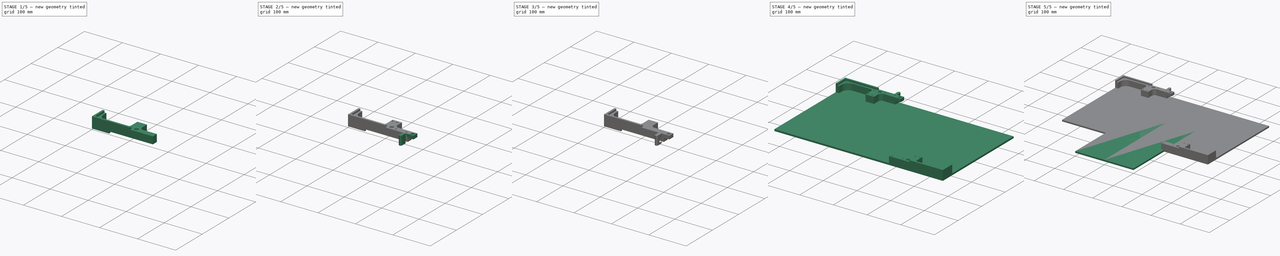
[diagram: build sequence overview — one tinted view per stage of 5, left to right]
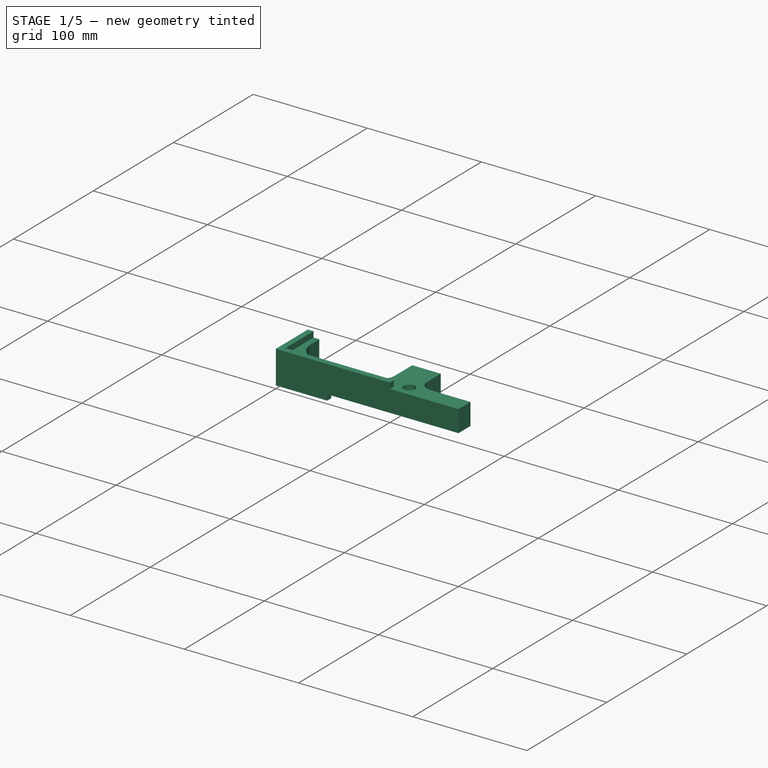
[diagram: stage 1 of 5 — iso view after this stage's code; geometry added in this stage tinted green]
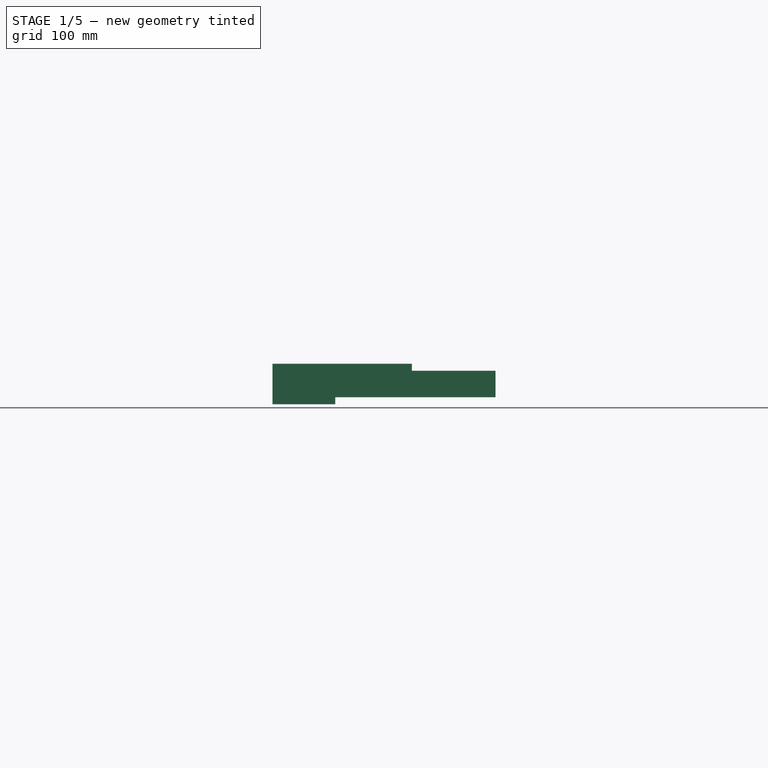
[diagram: stage 1 of 5 — front view after this stage's code; geometry added in this stage tinted green]
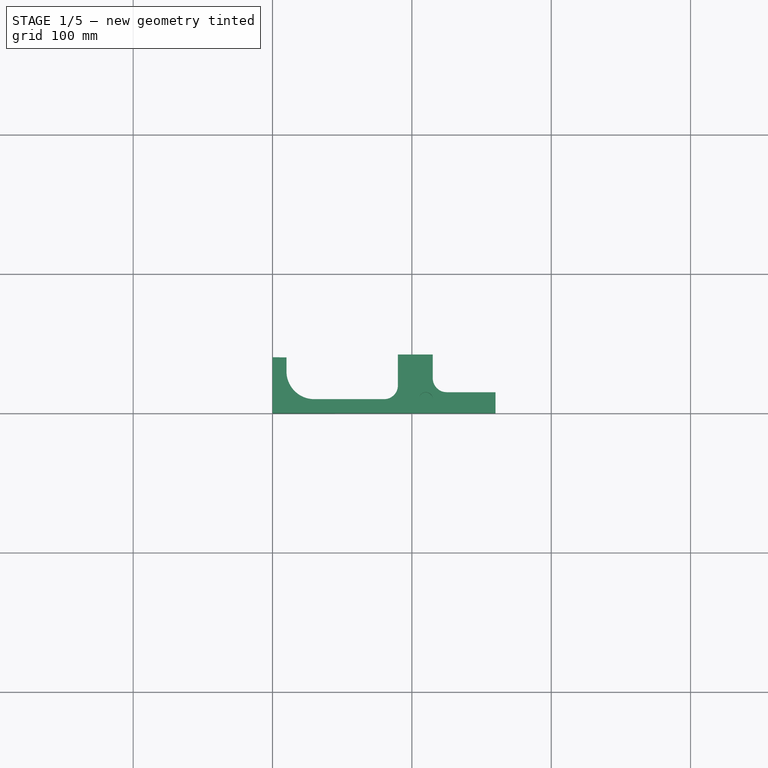
[diagram: stage 1 of 5 — top view after this stage's code; geometry added in this stage tinted green]
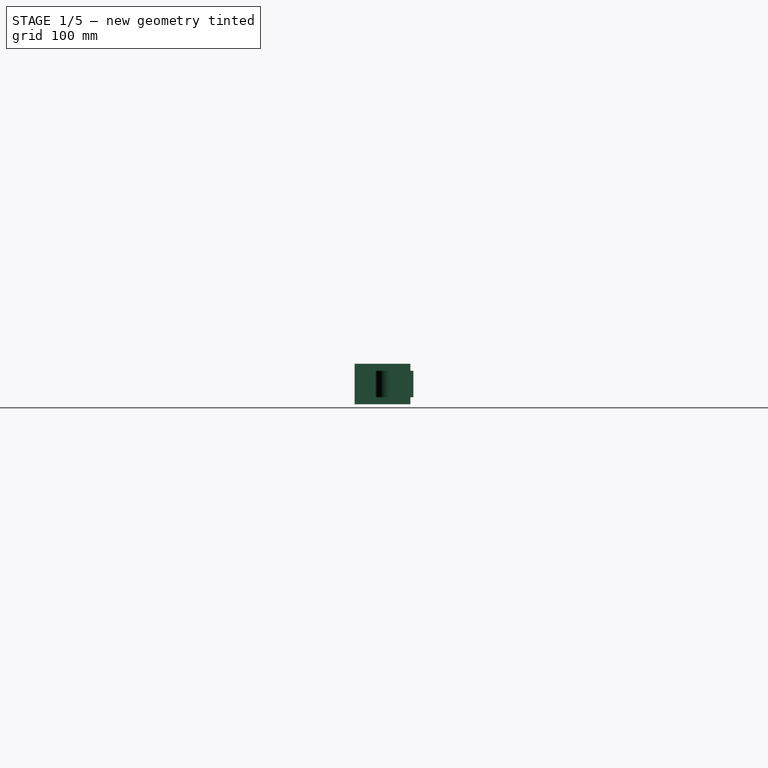
[diagram: stage 1 of 5 — right view after this stage's code; geometry added in this stage tinted green]
FCSTD DOCUMENT  (FreeCAD 1.0R39319 (Git))
Label: ChessBoard
License: All rights reserved
LicenseURL: https://en.wikipedia.org/wiki/All_rights_reserved
objects: Sketcher::SketchObject×19, PartDesign::Pocket×10, PartDesign::Pad×8, PartDesign::Body×6, App::LinkGroup×3, App::Link×3, PartDesign::Hole×2, Part::Mirroring×2, Image::ImagePlane×1
note: 106 computed .brp shape members not serialized (recipe doc carries the construction recipe); baked Part::Feature solids carry a one-line shape summary decoded from their .brp
EXTERNAL_REF file=NavigationBoard.FCStd obj=LinkGroup
EXTERNAL_REF file=SnapLock.FCStd obj=LinkGroup
EXTERNAL_REF file=SnapLock.FCStd obj=LinkGroup001

FEATURE [Sketcher::SketchObject] Sketch009
  ArcFitTolerance = 1e-06
  AttachmentSupport = -> [XY_Plane005]
  FullyConstrained = false
  MakeInternals = false
  MapMode = 5
  sketch-geometry (13):
    g0: LineSegment StartX=0 StartY=40 StartZ=0 EndX=0 EndY=0 EndZ=0
    g1: LineSegment StartX=0 StartY=0 StartZ=0 EndX=160 EndY=0 EndZ=0
    g2: LineSegment StartX=0 StartY=40 StartZ=0 EndX=10 EndY=40 EndZ=0
    g3: LineSegment StartX=10 StartY=40 StartZ=0 EndX=10 EndY=30 EndZ=0
    g4: ArcOfCircle CenterX=30 CenterY=30 CenterZ=0 NormalX=0 NormalY=0 NormalZ=1 AngleXU=0 Radius=20 StartAngle=3.14159 EndAngle=4.71239
    g5: LineSegment StartX=90 StartY=42.0946 StartZ=0 EndX=115 EndY=42.0946 EndZ=0
    g6: LineSegment StartX=115 StartY=42.0946 StartZ=0 EndX=115 EndY=25 EndZ=0
    g7: LineSegment StartX=90 StartY=42.0946 StartZ=0 EndX=90 EndY=20 EndZ=0
    g8: LineSegment StartX=30 StartY=10 StartZ=0 EndX=80 EndY=10 EndZ=0
    g9: ArcOfCircle CenterX=125 CenterY=25 CenterZ=0 NormalX=0 NormalY=0 NormalZ=1 AngleXU=0 Radius=10 StartAngle=3.14159 EndAngle=4.71239
    g10: ArcOfCircle CenterX=80 CenterY=20 CenterZ=0 NormalX=0 NormalY=0 NormalZ=1 AngleXU=0 Radius=10 StartAngle=4.71239 EndAngle=6.28319
    g11: LineSegment StartX=125 StartY=15 StartZ=0 EndX=160 EndY=15 EndZ=0
    g12: LineSegment StartX=160 StartY=15 StartZ=0 EndX=160 EndY=0 EndZ=0
  constraints (38):
    c: PointOnObject(g0,g-2)
    c: Coincident(g0,g-1)
    c: Coincident(g0,g1)
    c: Coincident(g0,g2)
    c: Horizontal(g2)
    c: Coincident(g2,g3)
    c: Vertical(g3)
    c: Coincident(g4,g3)
    c: Vertical(g4,g4)
    c: Horizontal(g4,g3)
    c: Radius(g4) = 20
    c: DistanceY(g1,g9) = 15
    c: Distance(g2,g2) = 10
    c: DistanceY(g0,g0) = 40
    c: Horizontal(g5)
    c: Coincident(g5,g6)
    c: Vertical(g6)
    c: Coincident(g5,g7)
    c: Vertical(g7)
    c: Tangent(g4,g8) = -1.5708
    c: Coincident(g9,g6)
    c: Coincident(g10,g7)
    c: Coincident(g10,g8)
    c: Distance(g1,g8) = 10
    c: Radius(g10) = 10
    c: Vertical(g10,g8)
    c: Horizontal(g10,g7)
    c: Radius(g9) = 10
    c: Vertical(g9,g9)
    c: Horizontal(g9,g6)
    c: DistanceX(g-1,g10) = 80
    c: Tangent(g9,g11) = -1.5708
    c: Coincident(g11,g12)
    c: Vertical(g12)
    c: Coincident(g1,g12)
    c: Horizontal(g1)
    c: Distance(g-2,g12) = 160
    c: DistanceX(g5,g5) = 25
FEATURE [PartDesign::Pad] Pad005
  Direction = (0,0,1)
  Length = 29
  Length2 = 10
  Profile = -> Sketch009
  ReferenceAxis = -> Sketch009 [N_Axis]
  Refine = true
  Suppressed = false
  Type = 0
FEATURE [Sketcher::SketchObject] Sketch010
  ArcFitTolerance = 1e-06
  AttachmentSupport = -> [Pad005]
  FullyConstrained = false
  MakeInternals = false
  MapMode = 5
  Placement = pos=(0,0,29) rot=(0,0,1;0rad)
  sketch-geometry (6):
    g0: LineSegment StartX=5 StartY=45 StartZ=0 EndX=5 EndY=5 EndZ=0
    g1: LineSegment StartX=5 StartY=5 StartZ=0 EndX=100 EndY=5 EndZ=0
    g2: LineSegment StartX=275.375 StartY=45 StartZ=0 EndX=5 EndY=45 EndZ=0
    g3: LineSegment StartX=100 StartY=5 StartZ=0 EndX=100 EndY=-8.02974 EndZ=0
    g4: LineSegment StartX=100 StartY=-8.02974 StartZ=0 EndX=275.375 EndY=-8.02974 EndZ=0
    g5: LineSegment StartX=275.375 StartY=45 StartZ=0 EndX=275.375 EndY=-8.02974 EndZ=0
  constraints (16):
    c: Coincident(g0,g1)
    c: Coincident(g2,g0)
    c: Vertical(g0)
    c: Horizontal(g1)
    c: Horizontal(g2)
    c: Distance(g-2,g0) = 5
    c: Distance(g-1,g1) = 5
    c: DistanceY(g0,g0) = 40
    c: Vertical(g3)
    c: Coincident(g3,g4)
    c: Horizontal(g4)
    c: Coincident(g1,g3)
    c: Coincident(g5,g2)
    c: Coincident(g5,g4)
    c: Vertical(g5)
    c: Distance(g-2,g3) = 100
FEATURE [PartDesign::Pocket] Pocket004
  BaseFeature = -> Pad005
  Direction = (0,0,-1)
  Length = 5
  Length2 = 5
  Profile = -> Sketch010
  ReferenceAxis = -> Sketch010 [N_Axis]
  Refine = true
  Suppressed = false
  Type = 0
FEATURE [Sketcher::SketchObject] Sketch008
  ArcFitTolerance = 1e-06
  AttachmentSupport = -> [Pad002]
  ExternalGeometry = -> [Pad002]
  FullyConstrained = false
  MakeInternals = false
  MapMode = 5
  Placement = pos=(-4.7e-15,-21,2.3e-15) rot=(0.57735,0.57735,-0.57735;2.0944rad)
  sketch-geometry (4):
    g0: LineSegment StartX=-13.8912 StartY=3.5 StartZ=0 EndX=-13.8912 EndY=-3.5 EndZ=0
    g1: LineSegment StartX=-13.8912 StartY=-3.5 StartZ=0 EndX=4 EndY=-3.5 EndZ=0
    g2: LineSegment StartX=4 StartY=-3.5 StartZ=0 EndX=4 EndY=3.5 EndZ=0
    g3: LineSegment StartX=4 StartY=3.5 StartZ=0 EndX=-13.8912 EndY=3.5 EndZ=0
  constraints (11):
    c: Coincident(g0,g1)
    c: Coincident(g1,g2)
    c: Coincident(g2,g3)
    c: Coincident(g3,g0)
    c: Vertical(g0)
    c: Vertical(g2)
    c: Horizontal(g1)
    c: Horizontal(g3)
    c: Vertical(g2,g-4)
    c: Distance(g3,g-4) = 4
    c: Distance(g-3,g1) = 4
FEATURE [PartDesign::Pocket] Pocket005
  BaseFeature = -> Pad002
  Direction = (0,1,0)
  Length = 5
  Length2 = 5
  Placement = pos=(0,0,0) rot=(1,1,1;2.0944rad)
  Profile = -> Sketch008
  ReferenceAxis = -> Sketch008 [N_Axis]
  Refine = true
  Suppressed = false
  Type = 1
FEATURE [Sketcher::SketchObject] Sketch009
  ArcFitTolerance = 1e-06
  AttachmentSupport = -> [Pocket005]
  FullyConstrained = true
  MakeInternals = false
  MapMode = 5
  Placement = pos=(4e-16,-2.5e-15,-4) rot=(0,0,-1;1.5708rad)
  sketch-geometry (2):
    g0: Circle CenterX=16 CenterY=0 CenterZ=0 NormalX=0 NormalY=0 NormalZ=1 AngleXU=0 Radius=1.5
    g1: Circle CenterX=-10 CenterY=0 CenterZ=0 NormalX=0 NormalY=0 NormalZ=1 AngleXU=0 Radius=1.5
  constraints (6):
    c: Diameter(g0) = 3
    c: PointOnObject(g0,g-1)
    c: Diameter(g1) = 3
    c: PointOnObject(g1,g-1)
    c: DistanceX(g1,g-1) = 10
    c: DistanceX(g-1,g0) = 16
FEATURE [PartDesign::Pocket] Pocket006
  BaseFeature = -> Pocket005
  Direction = (0,0,-1)
  Length = 5
  Length2 = 5
  Placement = pos=(0,0,0) rot=(1,1,1;2.0944rad)
  Profile = -> Sketch009
  ReferenceAxis = -> Sketch009 [N_Axis]
  Refine = true
  Suppressed = false
  Type = 1
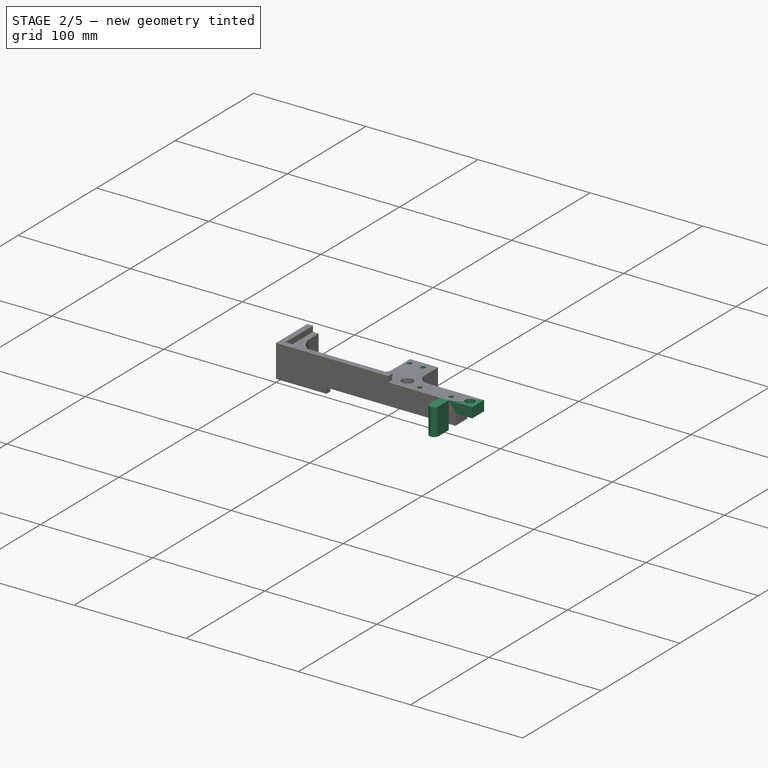
[diagram: stage 2 of 5 — iso view after this stage's code; geometry added in this stage tinted green]
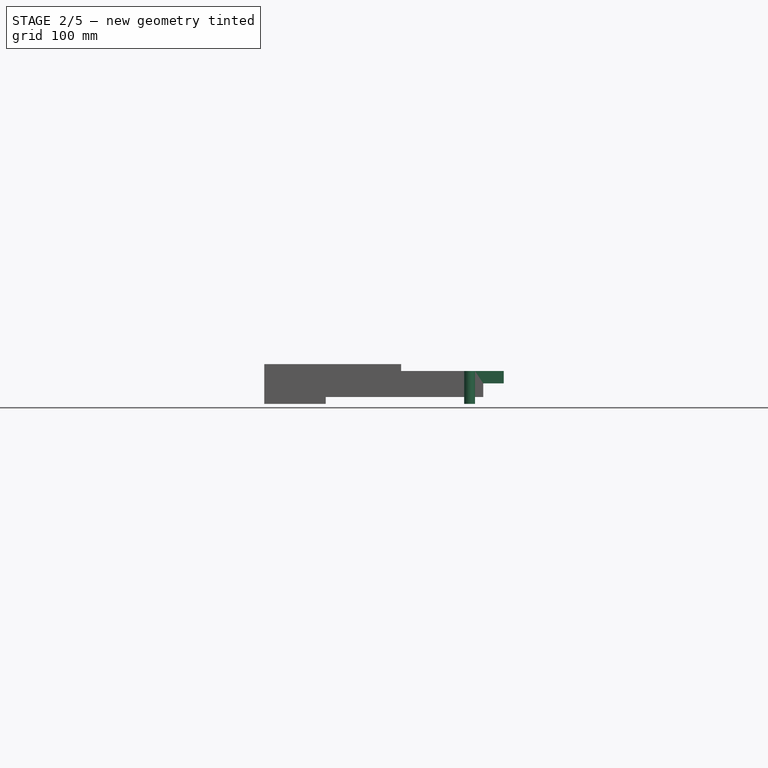
[diagram: stage 2 of 5 — front view after this stage's code; geometry added in this stage tinted green]
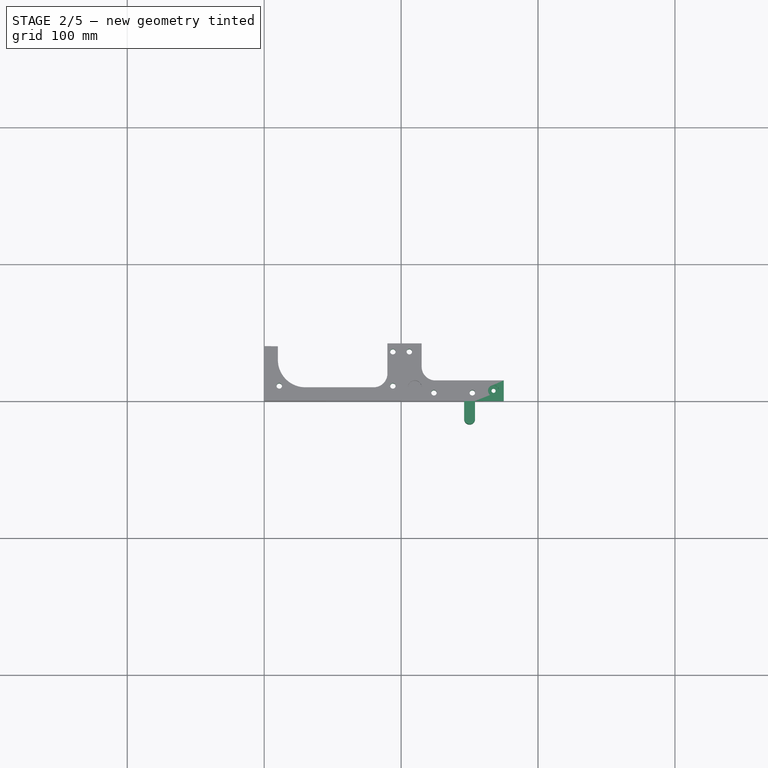
[diagram: stage 2 of 5 — top view after this stage's code; geometry added in this stage tinted green]
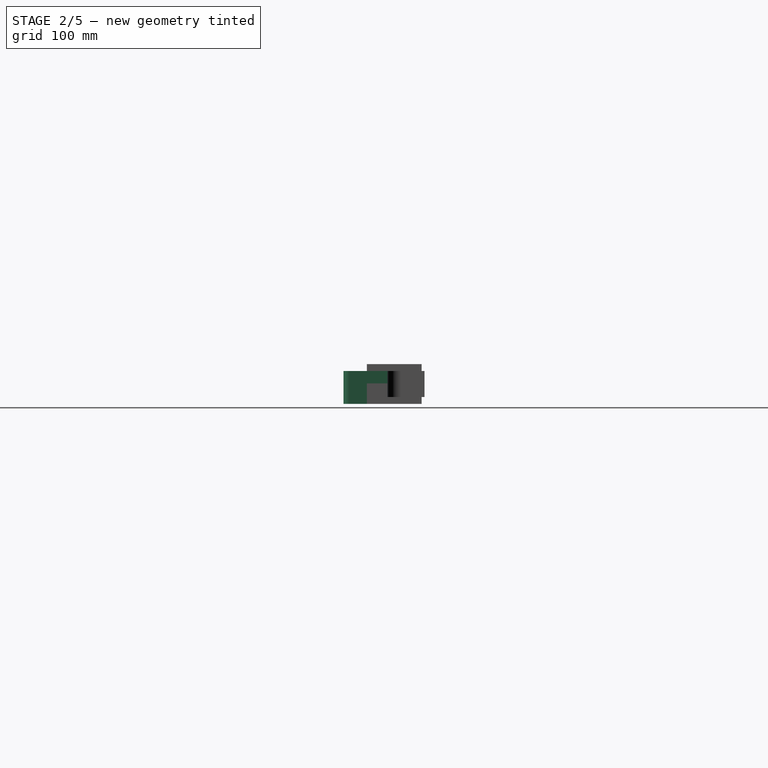
[diagram: stage 2 of 5 — right view after this stage's code; geometry added in this stage tinted green]
FEATURE [Sketcher::SketchObject] Sketch011
  ArcFitTolerance = 1e-06
  AttachmentSupport = -> [Pocket004]
  FullyConstrained = false
  MakeInternals = false
  MapMode = 5
  Placement = pos=(0,0,0) rot=(1,0,0;3.14159rad)
  sketch-geometry (6):
    g0: LineSegment StartX=5 StartY=-5 StartZ=0 EndX=5 EndY=-45 EndZ=0
    g1: LineSegment StartX=5 StartY=-45 StartZ=0 EndX=160 EndY=-45 EndZ=0
    g2: LineSegment StartX=45 StartY=-5 StartZ=0 EndX=5 EndY=-5 EndZ=0
    g3: LineSegment StartX=45 StartY=-5 StartZ=0 EndX=45 EndY=8.54607 EndZ=0
    g4: LineSegment StartX=45 StartY=8.54607 StartZ=0 EndX=160 EndY=8.54607 EndZ=0
    g5: LineSegment StartX=160 StartY=8.54607 StartZ=0 EndX=160 EndY=-45 EndZ=0
  constraints (17):
    c: Coincident(g0,g1)
    c: Coincident(g2,g0)
    c: Vertical(g0)
    c: Horizontal(g1)
    c: Horizontal(g2)
    c: Distance(g-1,g2) = 5
    c: Distance(g-2,g0) = 5
    c: DistanceY(g0,g0) = 40
    c: Coincident(g2,g3)
    c: Vertical(g3)
    c: Coincident(g3,g4)
    c: Horizontal(g4)
    c: Coincident(g4,g5)
    c: Coincident(g5,g1)
    c: Vertical(g5)
    c: DistanceX(g0,g2) = 40
    c: Distance(g1,g-2) = 160
FEATURE [PartDesign::Pocket] Pocket005
  BaseFeature = -> Pocket004
  Direction = (0,0,1)
  Length = 5
  Length2 = 5
  Profile = -> Sketch011
  ReferenceAxis = -> Sketch011 [N_Axis]
  Refine = true
  Suppressed = false
  Type = 0
FEATURE [Sketcher::SketchObject] Sketch012
  ArcFitTolerance = 1e-06
  AttachmentSupport = -> [Pocket005]
  ExternalGeometry = -> [Pocket005]
  FullyConstrained = true
  MakeInternals = false
  MapMode = 5
  Placement = pos=(0,0,24) rot=(0,0,1;0rad)
  sketch-geometry (1):
    g0: Circle CenterX=110 CenterY=10 CenterZ=0 NormalX=0 NormalY=0 NormalZ=1 AngleXU=0 Radius=5
  constraints (3):
    c: Diameter(g0) = 10
    c: Distance(g0,g-1) = 10
    c: DistanceX(g-3,g0) = 10
FEATURE [PartDesign::Pocket] Pocket006
  BaseFeature = -> Pocket005
  Direction = (0,0,-1)
  Length = 10
  Length2 = 5
  Profile = -> Sketch012
  ReferenceAxis = -> Sketch012 [N_Axis]
  Refine = true
  Suppressed = false
  Type = 0
FEATURE [Sketcher::SketchObject] Sketch013
  ArcFitTolerance = 1e-06
  AttachmentSupport = -> [Pocket006]
  ExternalGeometry = -> [Pocket006]
  FullyConstrained = true
  MakeInternals = false
  MapMode = 5
  Placement = pos=(160,0,0) rot=(0.57735,0.57735,0.57735;2.0944rad)
  sketch-geometry (4):
    g0: LineSegment StartX=15 StartY=24 StartZ=0 EndX=0 EndY=24 EndZ=0
    g1: LineSegment StartX=0 StartY=24 StartZ=0 EndX=0 EndY=15 EndZ=0
    g2: LineSegment StartX=0 StartY=15 StartZ=0 EndX=15 EndY=15 EndZ=0
    g3: LineSegment StartX=15 StartY=15 StartZ=0 EndX=15 EndY=24 EndZ=0
  constraints (11):
    c: Coincident(g0,g1)
    c: Coincident(g1,g2)
    c: Coincident(g2,g3)
    c: Coincident(g3,g0)
    c: Horizontal(g0)
    c: Horizontal(g2)
    c: Vertical(g1)
    c: Vertical(g3)
    c: Coincident(g0,g-3)
    c: PointOnObject(g1,g-2)
    c: Distance(g-1,g2) = 15
FEATURE [PartDesign::Pad] Pad006
  BaseFeature = -> Pocket006
  Direction = (1,0,0)
  Length = 15
  Length2 = 10
  Profile = -> Sketch013
  ReferenceAxis = -> Sketch013 [N_Axis]
  Refine = true
  Suppressed = false
  Type = 0
FEATURE [Sketcher::SketchObject] Sketch014
  ArcFitTolerance = 1e-06
  AttachmentSupport = -> [Pad006]
  ExternalGeometry = -> [Pad006]
  FullyConstrained = true
  MakeInternals = false
  MapMode = 5
  Placement = pos=(0,0,24) rot=(0,0,1;0rad)
  sketch-geometry (1):
    g0: Circle CenterX=167.5 CenterY=7.5 CenterZ=0 NormalX=0 NormalY=0 NormalZ=1 AngleXU=0 Radius=1.75
  constraints (2):
    c: Diameter(g0) = 3.5
    c: Symmetric(g-3,g-4,g0)
FEATURE [PartDesign::Hole] Hole
  BaseFeature = -> Pad006
  CustomThreadClearance = 0
  Depth = 25
  DepthType = 0
  Diameter = 3
  DrillForDepth = false
  DrillPoint = 1
  DrillPointAngle = 118
  HoleCutCountersinkAngle = 90
  HoleCutCustomValues = false
  HoleCutDepth = 0
  HoleCutDiameter = 6.1
  HoleCutType = 0
  ModelThread = false
  Profile = -> Sketch014
  Refine = true
  Suppressed = false
  Tapered = false
  TaperedAngle = 90
  ThreadClass = 0
  ThreadDepth = 25
  ThreadDepthType = 0
  ThreadDirection = 0
  ThreadFit = 0
  ThreadSize = 0
  ThreadType = 0
  Threaded = false
  UseCustomThreadClearance = false
FEATURE [PartDesign::Hole] Hole001
  BaseFeature = -> Hole
  CustomThreadClearance = 0
  Depth = 6
  DepthType = 0
  Diameter = 8
  DrillForDepth = false
  DrillPoint = 0
  DrillPointAngle = 118
  HoleCutCountersinkAngle = 90
  HoleCutCustomValues = false
  HoleCutDepth = 0
  HoleCutDiameter = 6.1
  HoleCutType = 0
  ModelThread = false
  Profile = -> Sketch014
  Refine = true
  Suppressed = false
  Tapered = false
  TaperedAngle = 90
  ThreadClass = 0
  ThreadDepth = 6
  ThreadDepthType = 0
  ThreadDirection = 0
  ThreadFit = 0
  ThreadSize = 0
  ThreadType = 0
  Threaded = false
  UseCustomThreadClearance = false
FEATURE [App::Link] Link  label="NavigationBoard"
  LinkPlacement = pos=(200.5,-84.6001,14) rot=(0,0,1;0rad)
  LinkedObject = -> <external NavigationBoard.FCStd>#LinkGroup
  Placement = pos=(200.5,-84.6001,14) rot=(0,0,1;0rad)
FEATURE [Sketcher::SketchObject] Sketch015
  ArcFitTolerance = 1e-06
  AttachmentSupport = -> [Pocket003]
  ExternalGeometry = -> [Pocket003]
  FullyConstrained = true
  MakeInternals = false
  MapMode = 5
  Placement = pos=(0,0,24) rot=(0,0,1;0rad)
  sketch-geometry (6):
    g0: Circle CenterX=11 CenterY=11 CenterZ=0 NormalX=0 NormalY=0 NormalZ=1 AngleXU=0 Radius=2
    g1: Circle CenterX=94 CenterY=11 CenterZ=0 NormalX=0 NormalY=0 NormalZ=1 AngleXU=0 Radius=2
    g2: Circle CenterX=94 CenterY=36 CenterZ=0 NormalX=0 NormalY=0 NormalZ=1 AngleXU=0 Radius=2
    g3: Circle CenterX=106 CenterY=36 CenterZ=0 NormalX=0 NormalY=0 NormalZ=1 AngleXU=0 Radius=2
    g4: Circle CenterX=124 CenterY=6 CenterZ=0 NormalX=0 NormalY=0 NormalZ=1 AngleXU=0 Radius=2
    g5: Circle CenterX=154 CenterY=6 CenterZ=0 NormalX=0 NormalY=0 NormalZ=1 AngleXU=0 Radius=2
  constraints (18):
    c: Diameter(g0) = 4
    c: Diameter(g1) = 4
    c: Diameter(g2) = 4
    c: Distance(g1,g-3) = 6
    c: Vertical(g2,g1)
    c: Distance(g1,g-5) = 6
    c: DistanceY(g1,g2) = 25
    c: Distance(g0,g-5) = 6
    c: Distance(g0,g-4) = 6
    c: Diameter(g3) = 4
    c: Diameter(g4) = 4
    c: Horizontal(g3,g2)
    c: Distance(g3,g-3) = 6
    c: Distance(g4,g-1) = 6
    c: Distance(g4,g-3) = 24
    c: Diameter(g5) = 4
    c: Distance(g5,g-1) = 6
    c: Distance(g5,g-6) = 6
FEATURE [PartDesign::Pocket] Pocket007
  BaseFeature = -> Pocket003
  Direction = (0,0,-1)
  Length = 5
  Length2 = 5
  Profile = -> Sketch015
  ReferenceAxis = -> Sketch015 [N_Axis]
  Refine = true
  Suppressed = false
  Type = 1
FEATURE [PartDesign::Body] Body004  label="AnchorBL"
  AllowCompound = false
  Group = -> [Sketch004,Pad004,Sketch006,Pocket001,Sketch007,Pocket002,Sketch008,Pocket003,Sketch015,Pocket007]
  Origin = -> Origin004
  Placement = pos=(-250,-150,0) rot=(0,0,1;0rad)
  Tip = -> Pocket007
FEATURE [Part::Mirroring] Part__Mirroring001  label="AnchorBR"
  Base = (0,0,0)
  Normal = (1,0,0)
  Source = -> Body004
FEATURE [Sketcher::SketchObject] Sketch016
  ArcFitTolerance = 1e-06
  AttachmentSupport = -> [Hole001]
  ExternalGeometry = -> [Hole001]
  FullyConstrained = true
  MakeInternals = false
  MapMode = 5
  Placement = pos=(0,0,24) rot=(0,0,1;0rad)
  sketch-geometry (6):
    g0: Circle CenterX=11 CenterY=11 CenterZ=0 NormalX=0 NormalY=0 NormalZ=1 AngleXU=0 Radius=2
    g1: Circle CenterX=94 CenterY=11 CenterZ=0 NormalX=0 NormalY=0 NormalZ=1 AngleXU=0 Radius=2
    g2: Circle CenterX=94 CenterY=36 CenterZ=0 NormalX=0 NormalY=0 NormalZ=1 AngleXU=0 Radius=2
    g3: Circle CenterX=106 CenterY=36 CenterZ=0 NormalX=0 NormalY=0 NormalZ=1 AngleXU=0 Radius=2
    g4: Circle CenterX=124 CenterY=6 CenterZ=0 NormalX=0 NormalY=0 NormalZ=1 AngleXU=0 Radius=2
    g5: Circle CenterX=152 CenterY=6 CenterZ=0 NormalX=0 NormalY=0 NormalZ=1 AngleXU=0 Radius=2
  constraints (18):
    c: Diameter(g0) = 4
    c: Diameter(g1) = 4
    c: Diameter(g2) = 4
    c: Diameter(g3) = 4
    c: Diameter(g4) = 4
    c: Diameter(g5) = 4
    c: Distance(g0,g-3) = 6
    c: Distance(g0,g-4) = 6
    c: DistanceX(g1,g-4) = 6
    c: Distance(g1,g-4) = 6
    c: Vertical(g1,g2)
    c: Horizontal(g3,g2)
    c: DistanceX(g-4,g3) = 6
    c: Distance(g4,g-1) = 6
    c: DistanceX(g-4,g4) = 24
    c: Horizontal(g5,g4)
    c: Distance(g5,g-5) = 8
    c: DistanceY(g1,g2) = 25
FEATURE [PartDesign::Pocket] Pocket008
  BaseFeature = -> Hole001
  Direction = (0,0,-1)
  Length = 5
  Length2 = 5
  Profile = -> Sketch016
  ReferenceAxis = -> Sketch016 [N_Axis]
  Refine = true
  Suppressed = false
  Type = 1
FEATURE [App::Link] Link001  label="LatchesLock"
  LinkPlacement = pos=(100,171,7.49998) rot=(0,1,0;1.5708rad)
  LinkedObject = -> <external SnapLock.FCStd>#LinkGroup
  Placement = pos=(100,171,7.49998) rot=(0,1,0;1.5708rad)
FEATURE [Sketcher::SketchObject] Sketch017
  ArcFitTolerance = 1e-06
  AttachmentSupport = -> [Pocket008]
  ExternalGeometry = -> [Pocket008]
  FullyConstrained = true
  MakeInternals = false
  MapMode = 5
  Placement = pos=(0,0,24) rot=(0,0,1;0rad)
  sketch-geometry (4):
    g0: LineSegment StartX=146 StartY=0 StartZ=0 EndX=146 EndY=-13 EndZ=0
    g1: ArcOfCircle CenterX=150 CenterY=-13 CenterZ=0 NormalX=0 NormalY=0 NormalZ=1 AngleXU=0 Radius=4 StartAngle=3.14159 EndAngle=6.28319
    g2: LineSegment StartX=154 StartY=-13 StartZ=0 EndX=154 EndY=0 EndZ=0
    g3: LineSegment StartX=146 StartY=0 StartZ=0 EndX=154 EndY=0 EndZ=0
  constraints (12):
    c: Vertical(g0)
    c: Coincident(g1,g0)
    c: Radius(g1) = 4
    c: Tangent(g1,g2) = -1.5708
    c: Vertical(g2)
    c: Coincident(g0,g3)
    c: Coincident(g3,g2)
    c: DistanceY(g1,g-1) = 13
    c: Symmetric(g0,g1,g1)
    c: Distance(g2,g-3) = 6
    c: Horizontal(g3)
    c: Horizontal(g2,g-3)
FEATURE [PartDesign::Pad] Pad007
  BaseFeature = -> Pocket008
  Direction = (0,0,1)
  Length = 24
  Length2 = 10
  Profile = -> Sketch017
  ReferenceAxis = -> Sketch017 [N_Axis]
  Refine = true
  Reversed = true
  Suppressed = false
  Type = 0
FEATURE [Sketcher::SketchObject] Sketch012
  ArcFitTolerance = 1e-06
  AttachmentSupport = -> [Pad003]
  FullyConstrained = true
  MakeInternals = false
  MapMode = 5
  Placement = pos=(7.5,-1.7e-15,8e-16) rot=(0.57735,0.57735,0.57735;2.0944rad)
  sketch-geometry (1):
    g0: Circle CenterX=0 CenterY=0 CenterZ=0 NormalX=0 NormalY=0 NormalZ=1 AngleXU=0 Radius=5
  constraints (2):
    c: Diameter(g0) = 10
    c: Coincident(g0,g-1)
FEATURE [PartDesign::Pocket] Pocket008
  BaseFeature = -> Pad003
  Direction = (-1,0,0)
  Length = 5
  Length2 = 5
  Placement = pos=(0,0,0) rot=(1,1,1;2.0944rad)
  Profile = -> Sketch012
  ReferenceAxis = -> Sketch012 [N_Axis]
  Refine = true
  Suppressed = false
  Type = 0
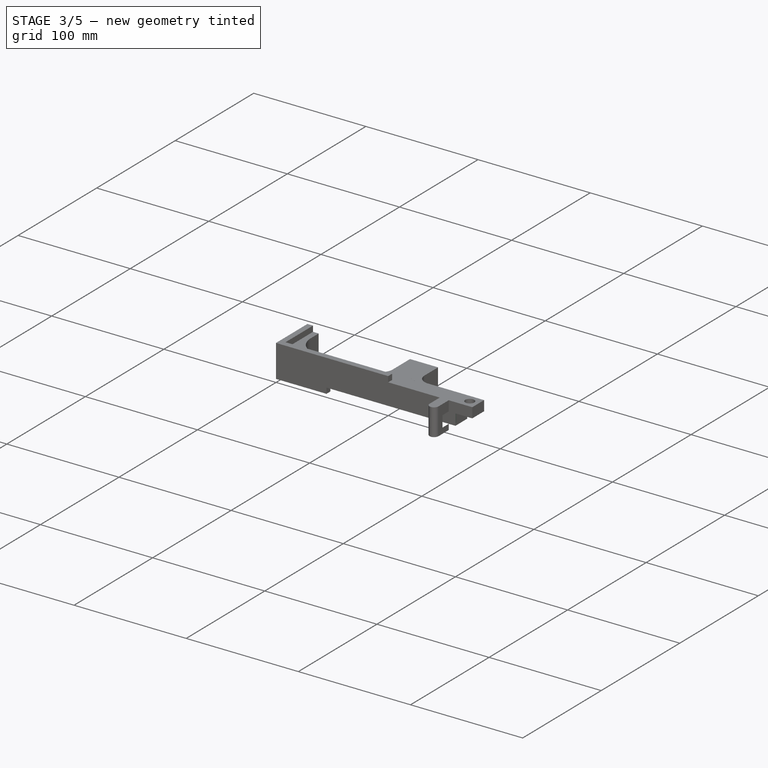
[diagram: stage 3 of 5 — iso view after this stage's code; geometry added in this stage tinted green]
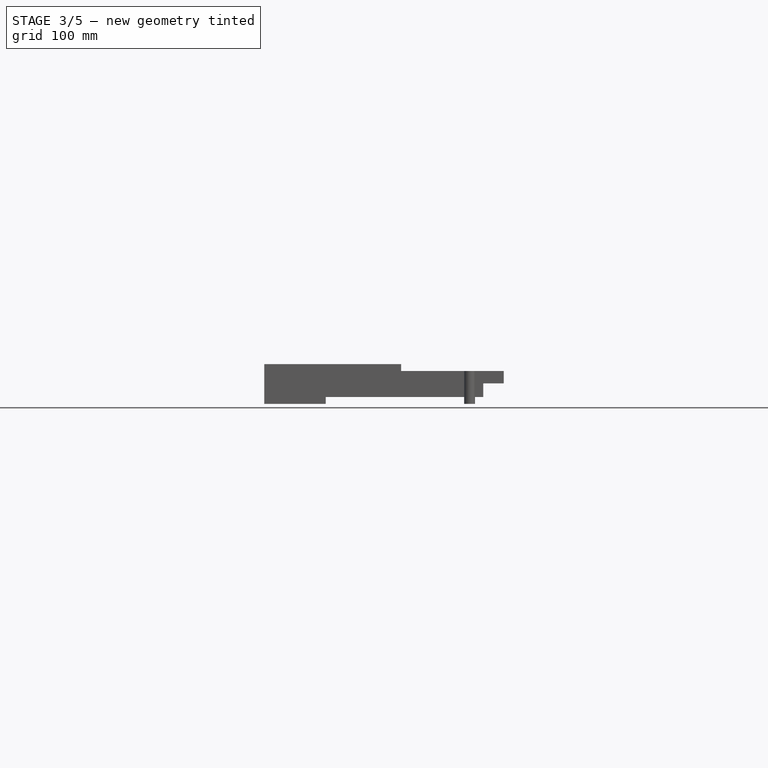
[diagram: stage 3 of 5 — front view after this stage's code; geometry added in this stage tinted green]
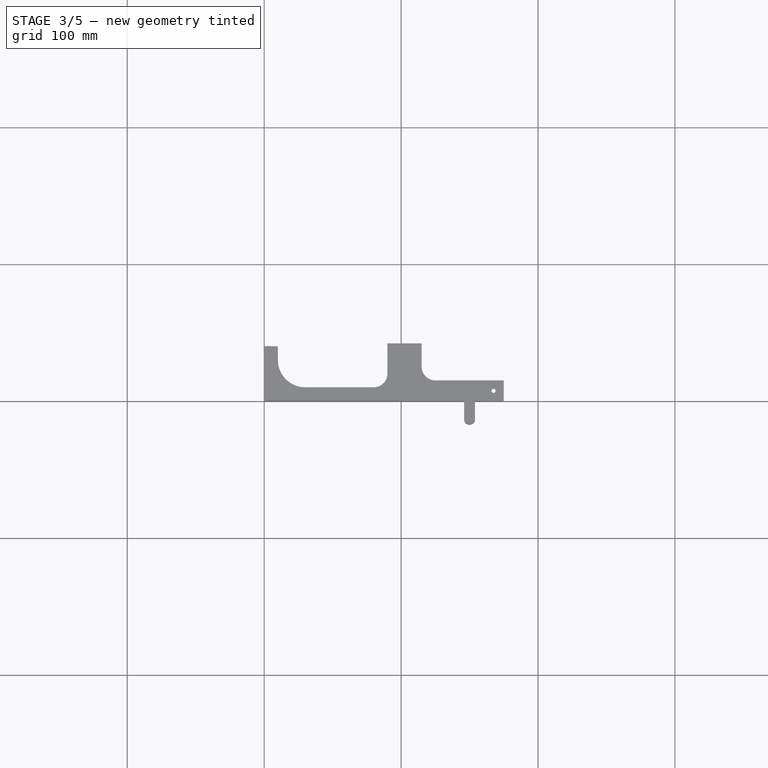
[diagram: stage 3 of 5 — top view after this stage's code; geometry added in this stage tinted green]
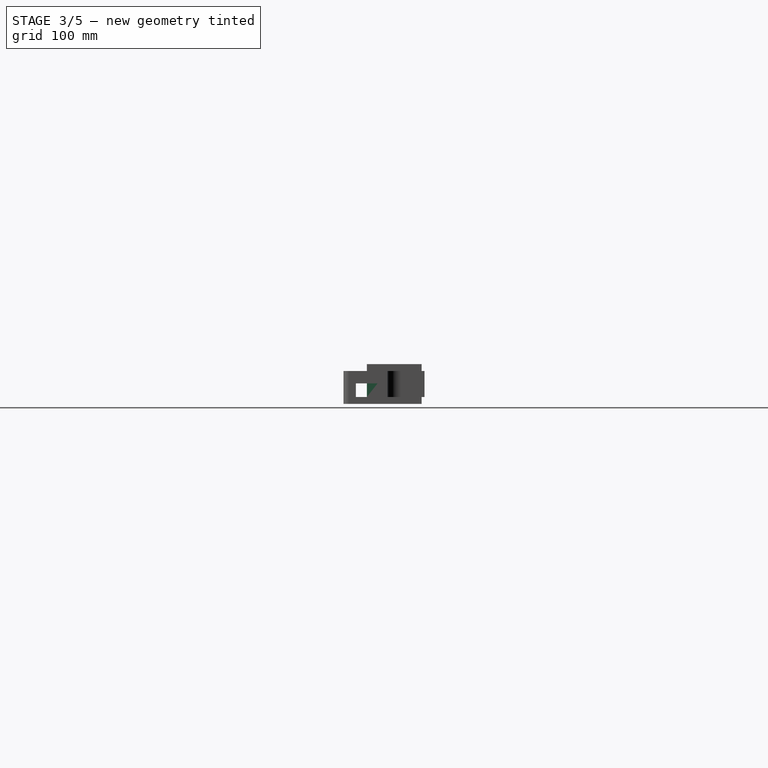
[diagram: stage 3 of 5 — right view after this stage's code; geometry added in this stage tinted green]
FEATURE [PartDesign::Body] Body001  label="MainBoard"
  AllowCompound = false
  Group = -> [Sketch001,Pad001]
  Origin = -> Origin001
  Placement = pos=(0,0,25) rot=(0,0,1;0rad)
  Tip = -> Pad001
FEATURE [Sketcher::SketchObject] Sketch002
  ArcFitTolerance = 1e-06
  AttachmentSupport = -> [XY_Plane002]
  FullyConstrained = true
  MakeInternals = false
  MapMode = 5
  sketch-geometry (4):
    g0: LineSegment StartX=0 StartY=0 StartZ=0 EndX=0 EndY=-300 EndZ=0
    g1: LineSegment StartX=0 StartY=-300 StartZ=0 EndX=100 EndY=-300 EndZ=0
    g2: LineSegment StartX=100 StartY=-300 StartZ=0 EndX=100 EndY=0 EndZ=0
    g3: LineSegment StartX=100 StartY=0 StartZ=0 EndX=0 EndY=0 EndZ=0
  constraints (11):
    c: Coincident(g0,g1)
    c: Coincident(g1,g2)
    c: Coincident(g2,g3)
    c: Coincident(g3,g0)
    c: Vertical(g0)
    c: Vertical(g2)
    c: Horizontal(g1)
    c: Horizontal(g3)
    c: Distance(g0,g2) = 100
    c: Distance(g1,g3) = 300
    c: Coincident(g0,g-1)
FEATURE [PartDesign::Pad] Pad002
  Direction = (0,0,1)
  Length = 5
  Length2 = 10
  Profile = -> Sketch002
  ReferenceAxis = -> Sketch002 [N_Axis]
  Refine = true
  Suppressed = false
  Type = 0
FEATURE [PartDesign::Body] Body002  label="DropLeft"
  AllowCompound = false
  Group = -> [Sketch002,Pad002]
  Origin = -> Origin002
  Placement = pos=(-250,150,25) rot=(0,0,1;0rad)
  Tip = -> Pad002
FEATURE [Sketcher::SketchObject] Sketch003
  ArcFitTolerance = 1e-06
  AttachmentSupport = -> [XY_Plane003]
  FullyConstrained = true
  MakeInternals = false
  MapMode = 5
  sketch-geometry (4):
    g0: LineSegment StartX=0 StartY=0 StartZ=0 EndX=-100 EndY=0 EndZ=0
    g1: LineSegment StartX=-100 StartY=0 StartZ=0 EndX=-100 EndY=-300 EndZ=0
    g2: LineSegment StartX=-100 StartY=-300 StartZ=0 EndX=0 EndY=-300 EndZ=0
    g3: LineSegment StartX=0 StartY=-300 StartZ=0 EndX=0 EndY=0 EndZ=0
  constraints (11):
    c: Coincident(g0,g1)
    c: Coincident(g1,g2)
    c: Coincident(g2,g3)
    c: Coincident(g3,g0)
    c: Horizontal(g0)
    c: Horizontal(g2)
    c: Vertical(g1)
    c: Vertical(g3)
    c: Distance(g1,g3) = 100
    c: Distance(g0,g2) = 300
    c: Coincident(g0,g-1)
FEATURE [PartDesign::Pad] Pad003
  Direction = (0,0,1)
  Length = 5
  Length2 = 10
  Profile = -> Sketch003
  ReferenceAxis = -> Sketch003 [N_Axis]
  Refine = true
  Suppressed = false
  Type = 0
FEATURE [PartDesign::Body] Body003  label="DropRight"
  AllowCompound = false
  Group = -> [Sketch003,Pad003]
  Origin = -> Origin003
  Placement = pos=(250,150,25) rot=(0,0,1;0rad)
  Tip = -> Pad003
FEATURE [Sketcher::SketchObject] Sketch004
  ArcFitTolerance = 1e-06
  AttachmentSupport = -> [XY_Plane004]
  FullyConstrained = false
  MakeInternals = false
  MapMode = 5
  sketch-geometry (13):
    g0: LineSegment StartX=0 StartY=40 StartZ=0 EndX=0 EndY=0 EndZ=0
    g1: LineSegment StartX=0 StartY=0 StartZ=0 EndX=160 EndY=0 EndZ=0
    g2: LineSegment StartX=0 StartY=40 StartZ=0 EndX=10 EndY=40 EndZ=0
    g3: LineSegment StartX=10 StartY=40 StartZ=0 EndX=10 EndY=30 EndZ=0
    g4: ArcOfCircle CenterX=30 CenterY=30 CenterZ=0 NormalX=0 NormalY=0 NormalZ=1 AngleXU=0 Radius=20 StartAngle=3.14159 EndAngle=4.71239
    g5: LineSegment StartX=90 StartY=42.0946 StartZ=0 EndX=115 EndY=42.0946 EndZ=0
    g6: LineSegment StartX=115 StartY=42.0946 StartZ=0 EndX=115 EndY=25 EndZ=0
    g7: LineSegment StartX=90 StartY=42.0946 StartZ=0 EndX=90 EndY=20 EndZ=0
    g8: LineSegment StartX=30 StartY=10 StartZ=0 EndX=80 EndY=10 EndZ=0
    g9: ArcOfCircle CenterX=125 CenterY=25 CenterZ=0 NormalX=0 NormalY=0 NormalZ=1 AngleXU=0 Radius=10 StartAngle=3.14159 EndAngle=4.71239
    g10: ArcOfCircle CenterX=80 CenterY=20 CenterZ=0 NormalX=0 NormalY=0 NormalZ=1 AngleXU=0 Radius=10 StartAngle=4.71239 EndAngle=6.28319
    g11: LineSegment StartX=125 StartY=15 StartZ=0 EndX=160 EndY=15 EndZ=0
    g12: LineSegment StartX=160 StartY=15 StartZ=0 EndX=160 EndY=0 EndZ=0
  constraints (38):
    c: PointOnObject(g0,g-2)
    c: Coincident(g0,g-1)
    c: Coincident(g0,g1)
    c: Coincident(g0,g2)
    c: Horizontal(g2)
    c: Coincident(g2,g3)
    c: Vertical(g3)
    c: Coincident(g4,g3)
    c: Vertical(g4,g4)
    c: Horizontal(g4,g3)
    c: Radius(g4) = 20
    c: DistanceY(g1,g9) = 15
    c: Distance(g2,g2) = 10
    c: DistanceY(g0,g0) = 40
    c: Horizontal(g5)
    c: Coincident(g5,g6)
    c: Vertical(g6)
    c: Coincident(g5,g7)
    c: Vertical(g7)
    c: Tangent(g4,g8) = -1.5708
    c: Coincident(g9,g6)
    c: Coincident(g10,g7)
    c: Coincident(g10,g8)
    c: Distance(g1,g8) = 10
    c: Radius(g10) = 10
    c: Vertical(g10,g8)
    c: Horizontal(g10,g7)
    c: Radius(g9) = 10
    c: Vertical(g9,g9)
    c: Horizontal(g9,g6)
    c: DistanceX(g-1,g10) = 80
    c: Tangent(g9,g11) = -1.5708
    c: Coincident(g11,g12)
    c: Vertical(g12)
    c: Coincident(g1,g12)
    c: Horizontal(g1)
    c: Distance(g-2,g12) = 160
    c: DistanceX(g5,g5) = 25
FEATURE [PartDesign::Pad] Pad004
  Direction = (0,0,1)
  Length = 29
  Length2 = 10
  Profile = -> Sketch004
  ReferenceAxis = -> Sketch004 [N_Axis]
  Refine = true
  Suppressed = false
  Type = 0
FEATURE [PartDesign::Body] Body  label="Bottom"
  AllowCompound = false
  Group = -> [Sketch,Pad,Sketch005,Pocket]
  Origin = -> Origin
  Tip = -> Pocket
FEATURE [Sketcher::SketchObject] Sketch006
  ArcFitTolerance = 1e-06
  AttachmentSupport = -> [Pad004]
  FullyConstrained = false
  MakeInternals = false
  MapMode = 5
  Placement = pos=(0,0,29) rot=(0,0,1;0rad)
  sketch-geometry (6):
    g0: LineSegment StartX=5 StartY=45 StartZ=0 EndX=5 EndY=5 EndZ=0
    g1: LineSegment StartX=5 StartY=5 StartZ=0 EndX=100 EndY=5 EndZ=0
    g2: LineSegment StartX=275.375 StartY=45 StartZ=0 EndX=5 EndY=45 EndZ=0
    g3: LineSegment StartX=100 StartY=5 StartZ=0 EndX=100 EndY=-8.02974 EndZ=0
    g4: LineSegment StartX=100 StartY=-8.02974 StartZ=0 EndX=275.375 EndY=-8.02974 EndZ=0
    g5: LineSegment StartX=275.375 StartY=45 StartZ=0 EndX=275.375 EndY=-8.02974 EndZ=0
  constraints (16):
    c: Coincident(g0,g1)
    c: Coincident(g2,g0)
    c: Vertical(g0)
    c: Horizontal(g1)
    c: Horizontal(g2)
    c: Distance(g-2,g0) = 5
    c: Distance(g-1,g1) = 5
    c: DistanceY(g0,g0) = 40
    c: Vertical(g3)
    c: Coincident(g3,g4)
    c: Horizontal(g4)
    c: Coincident(g1,g3)
    c: Coincident(g5,g2)
    c: Coincident(g5,g4)
    c: Vertical(g5)
    c: Distance(g-2,g3) = 100
FEATURE [PartDesign::Pocket] Pocket001
  BaseFeature = -> Pad004
  Direction = (0,0,-1)
  Length = 5
  Length2 = 5
  Profile = -> Sketch006
  ReferenceAxis = -> Sketch006 [N_Axis]
  Refine = true
  Suppressed = false
  Type = 0
FEATURE [Sketcher::SketchObject] Sketch007
  ArcFitTolerance = 1e-06
  AttachmentSupport = -> [Pocket001]
  FullyConstrained = false
  MakeInternals = false
  MapMode = 5
  Placement = pos=(0,0,0) rot=(1,0,0;3.14159rad)
  sketch-geometry (6):
    g0: LineSegment StartX=5 StartY=-5 StartZ=0 EndX=5 EndY=-45 EndZ=0
    g1: LineSegment StartX=5 StartY=-45 StartZ=0 EndX=160 EndY=-45 EndZ=0
    g2: LineSegment StartX=45 StartY=-5 StartZ=0 EndX=5 EndY=-5 EndZ=0
    g3: LineSegment StartX=45 StartY=-5 StartZ=0 EndX=45 EndY=8.54607 EndZ=0
    g4: LineSegment StartX=45 StartY=8.54607 StartZ=0 EndX=160 EndY=8.54607 EndZ=0
    g5: LineSegment StartX=160 StartY=8.54607 StartZ=0 EndX=160 EndY=-45 EndZ=0
  constraints (17):
    c: Coincident(g0,g1)
    c: Coincident(g2,g0)
    c: Vertical(g0)
    c: Horizontal(g1)
    c: Horizontal(g2)
    c: Distance(g-1,g2) = 5
    c: Distance(g-2,g0) = 5
    c: DistanceY(g0,g0) = 40
    c: Coincident(g2,g3)
    c: Vertical(g3)
    c: Coincident(g3,g4)
    c: Horizontal(g4)
    c: Coincident(g4,g5)
    c: Coincident(g5,g1)
    c: Vertical(g5)
    c: DistanceX(g0,g2) = 40
    c: Distance(g1,g-2) = 160
FEATURE [PartDesign::Pocket] Pocket002
  BaseFeature = -> Pocket001
  Direction = (0,0,1)
  Length = 5
  Length2 = 5
  Profile = -> Sketch007
  ReferenceAxis = -> Sketch007 [N_Axis]
  Refine = true
  Suppressed = false
  Type = 0
FEATURE [PartDesign::Mirrored] Mirrored001
  BaseFeature = -> Pocket008
  MirrorPlane = -> YZ_Plane003
  Originals = -> [Pocket008]
  Placement = pos=(0,0,0) rot=(1,1,1;2.0944rad)
  Refine = true
  Suppressed = false
  TransformMode = 0
FEATURE [Sketcher::SketchObject] Sketch013
  ArcFitTolerance = 1e-06
  AttachmentSupport = -> [XY_Plane003]
  FullyConstrained = true
  MakeInternals = false
  MapMode = 5
  sketch-geometry (1):
    g0: Circle CenterX=0 CenterY=10 CenterZ=0 NormalX=0 NormalY=0 NormalZ=1 AngleXU=0 Radius=3
  constraints (3):
    c: Diameter(g0) = 6
    c: PointOnObject(g0,g-2)
    c: DistanceY(g-1,g0) = 10
FEATURE [PartDesign::Pocket] Pocket009
  BaseFeature = -> Mirrored001
  Direction = (0,0,-1)
  Length = 7
  Length2 = 5
  Placement = pos=(0,0,0) rot=(1,1,1;2.0944rad)
  Profile = -> Sketch013
  ReferenceAxis = -> Sketch013 [N_Axis]
  Refine = true
  Reversed = true
  Suppressed = false
  Type = 0
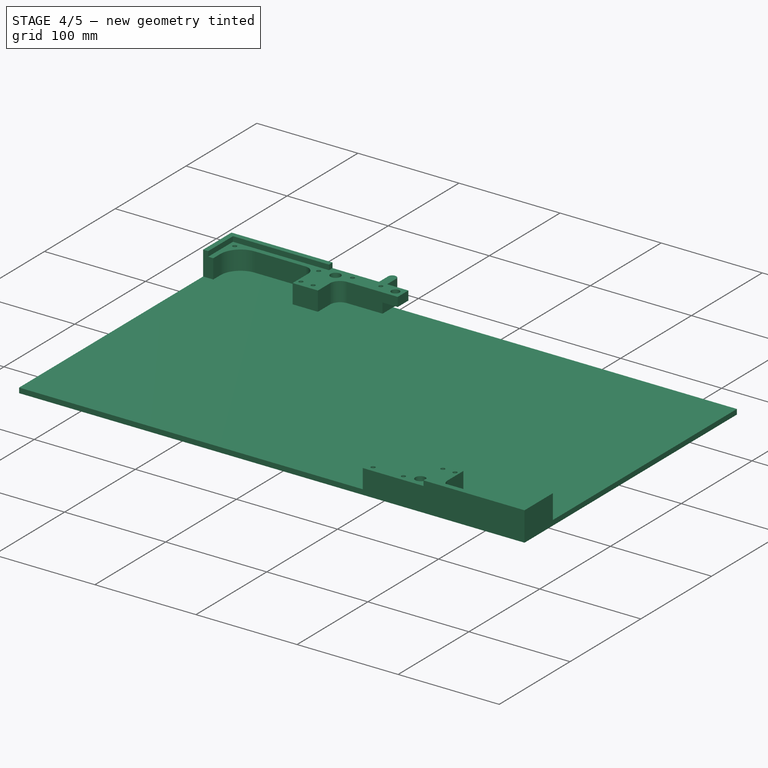
[diagram: stage 4 of 5 — iso view after this stage's code; geometry added in this stage tinted green]
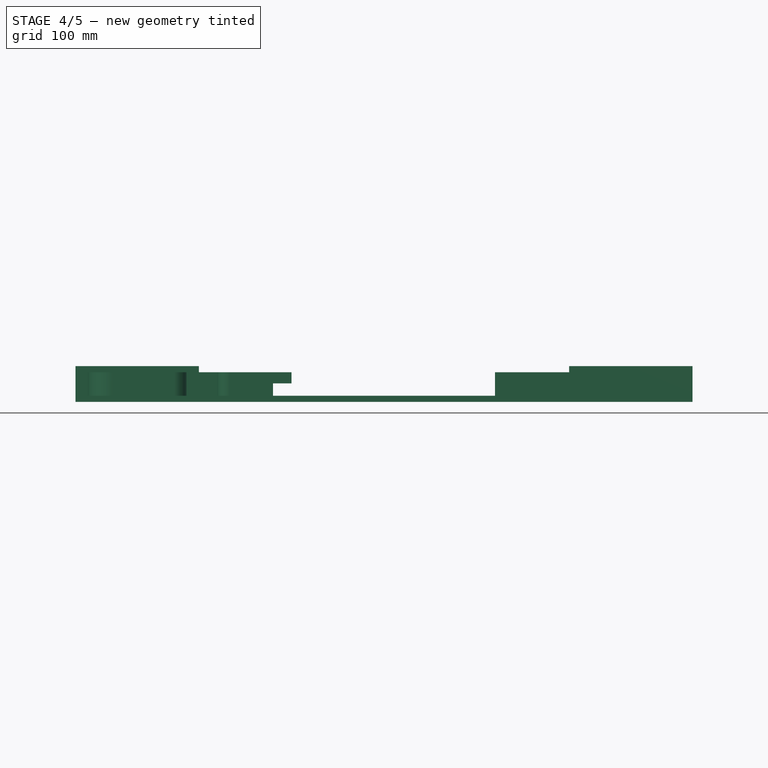
[diagram: stage 4 of 5 — front view after this stage's code; geometry added in this stage tinted green]
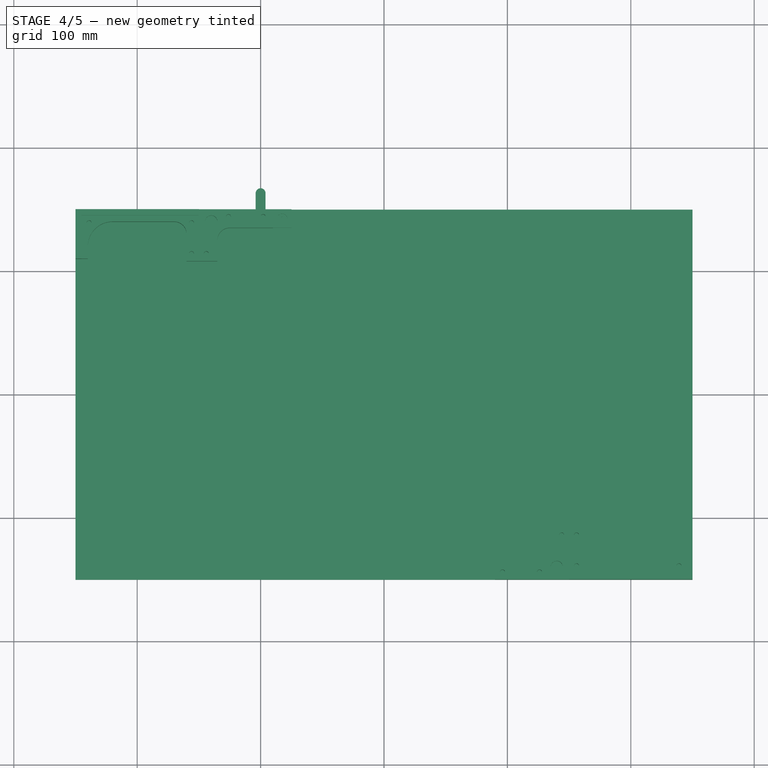
[diagram: stage 4 of 5 — top view after this stage's code; geometry added in this stage tinted green]
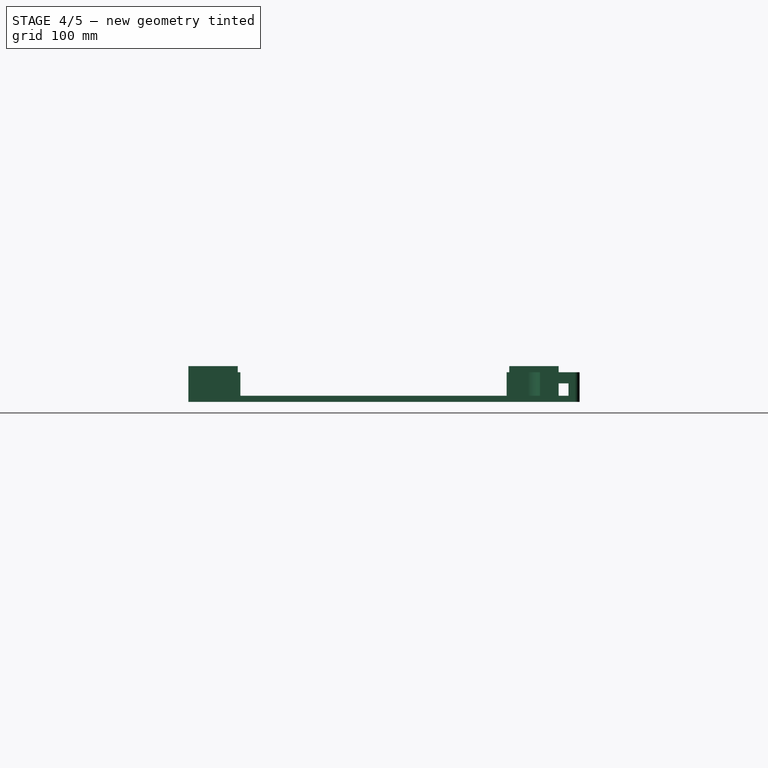
[diagram: stage 4 of 5 — right view after this stage's code; geometry added in this stage tinted green]
FEATURE [Sketcher::SketchObject] Sketch
  ArcFitTolerance = 1e-06
  AttachmentSupport = -> [XY_Plane]
  FullyConstrained = true
  MakeInternals = false
  MapMode = 5
  sketch-geometry (5):
    g0: LineSegment StartX=-250 StartY=-150 StartZ=0 EndX=250 EndY=-150 EndZ=0
    g1: LineSegment StartX=250 StartY=-150 StartZ=0 EndX=250 EndY=150 EndZ=0
    g2: LineSegment StartX=250 StartY=150 StartZ=0 EndX=-250 EndY=150 EndZ=0
    g3: LineSegment StartX=-250 StartY=150 StartZ=0 EndX=-250 EndY=-150 EndZ=0
    g4: GeomPoint [constr] X=0 Y=0 Z=0
  constraints (12):
    c: Coincident(g0,g1)
    c: Coincident(g1,g2)
    c: Coincident(g2,g3)
    c: Coincident(g3,g0)
    c: Horizontal(g0)
    c: Horizontal(g2)
    c: Vertical(g1)
    c: Vertical(g3)
    c: Symmetric(g2,g0,g4)
    c: Distance(g1,g3) = 500
    c: Distance(g0,g2) = 300
    c: Coincident(g4,g-1)
FEATURE [Image::ImagePlane] ChessBoard
  Placement = pos=(0,0,30) rot=(0,0,1;0rad)
  XSize = 500.127
  YSize = 300.144
FEATURE [PartDesign::Pad] Pad
  Direction = (0,0,1)
  Length = 5
  Length2 = 10
  Profile = -> Sketch
  ReferenceAxis = -> Sketch [N_Axis]
  Refine = true
  Suppressed = false
  Type = 0
FEATURE [Sketcher::SketchObject] Sketch008
  ArcFitTolerance = 1e-06
  AttachmentSupport = -> [Pocket002]
  ExternalGeometry = -> [Pocket002]
  FullyConstrained = true
  MakeInternals = false
  MapMode = 5
  Placement = pos=(0,0,24) rot=(0,0,1;0rad)
  sketch-geometry (1):
    g0: Circle CenterX=110 CenterY=10 CenterZ=0 NormalX=0 NormalY=0 NormalZ=1 AngleXU=0 Radius=5
  constraints (3):
    c: Diameter(g0) = 10
    c: Distance(g0,g-1) = 10
    c: DistanceX(g-3,g0) = 10
FEATURE [PartDesign::Pocket] Pocket003
  BaseFeature = -> Pocket002
  Direction = (0,0,-1)
  Length = 10
  Length2 = 5
  Profile = -> Sketch008
  ReferenceAxis = -> Sketch008 [N_Axis]
  Refine = true
  Suppressed = false
  Type = 0
FEATURE [Sketcher::SketchObject] Sketch010
  ArcFitTolerance = 1e-06
  AttachmentSupport = -> [Pocket006]
  ExternalGeometry = -> [Pocket006]
  FullyConstrained = true
  MakeInternals = false
  MapMode = 5
  Placement = pos=(1.8e-15,-2.9e-15,-4) rot=(0,0,-1;1.5708rad)
  sketch-geometry (2):
    g0: Circle CenterX=-10 CenterY=0 CenterZ=0 NormalX=0 NormalY=0 NormalZ=1 AngleXU=0 Radius=3
    g1: Circle CenterX=16 CenterY=0 CenterZ=0 NormalX=0 NormalY=0 NormalZ=1 AngleXU=0 Radius=3
  constraints (4):
    c: Diameter(g0) = 6
    c: Coincident(g0,g-3)
    c: Diameter(g1) = 6
    c: Coincident(g1,g-4)
FEATURE [PartDesign::Pocket] Pocket007
  BaseFeature = -> Pocket006
  Direction = (0,0,-1)
  Length = 3
  Length2 = 5
  Placement = pos=(0,0,0) rot=(1,1,1;2.0944rad)
  Profile = -> Sketch010
  ReferenceAxis = -> Sketch010 [N_Axis]
  Refine = true
  Suppressed = false
  Type = 0
FEATURE [Sketcher::SketchObject] Sketch014
  ArcFitTolerance = 1e-06
  AttachmentSupport = -> [Pocket009]
  ExternalGeometry = -> [Pocket009]
  FullyConstrained = false
  MakeInternals = false
  MapMode = 5
  Placement = pos=(7.5,-5e-15,2.5e-15) rot=(0.57735,0.57735,0.57735;2.0944rad)
  sketch-geometry (4):
    g0: LineSegment StartX=-21 StartY=4 StartZ=0 EndX=-21 EndY=-1.99999 EndZ=0
    g1: LineSegment StartX=-21 StartY=-1.99999 StartZ=0 EndX=-13 EndY=-1.99999 EndZ=0
    g2: LineSegment StartX=-13 StartY=4 StartZ=0 EndX=-21 EndY=4 EndZ=0
    g3: LineSegment StartX=-13 StartY=4 StartZ=0 EndX=-13 EndY=-1.99999 EndZ=0
  constraints (10):
    c: Coincident(g0,g1)
    c: Coincident(g2,g0)
    c: Vertical(g0)
    c: Horizontal(g1)
    c: Horizontal(g2)
    c: Coincident(g3,g2)
    c: Coincident(g3,g1)
    c: Vertical(g3)
    c: Coincident(g0,g-3)
    c: DistanceX(g2,g2) = 8
FEATURE [PartDesign::Pocket] Pocket010
  BaseFeature = -> Pocket009
  Direction = (-1,0,0)
  Length = 6
  Length2 = 5
  Placement = pos=(0,0,0) rot=(1,1,1;2.0944rad)
  Profile = -> Sketch014
  ReferenceAxis = -> Sketch014 [N_Axis]
  Refine = true
  Suppressed = false
  Type = 0
FEATURE [PartDesign::Body] Body003  label="Top001"
  AllowCompound = false
  Group = -> [Sketch011,Pad003,Sketch012,Pocket008,Mirrored001,Sketch013,Pocket009,Sketch014,Pocket010]
  Origin = -> Origin003
  Tip = -> Pocket010
FEATURE [App::LinkGroup] LinkGroup  label="LatchesLockLeft"
  ElementList = -> [Body002,Body003]
  LinkMode = 0
  Placement = pos=(0,-2.6226e-06,24.2) rot=(0,0,1;0rad)
FEATURE [Part::Mirroring] Part__Mirroring  label="Top001 (Mirror #1)"
  Base = (0,0,0)
  Normal = (0,0,1)
  Source = -> Body003
FEATURE [Part::Mirroring] Part__Mirroring001  label="Bottom001 (Mirror #2)"
  Base = (0,0,0)
  Normal = (0,0,1)
  Source = -> Body002
FEATURE [App::LinkGroup] LinkGroup001  label="LatchesLockRight"
  ElementList = -> [Part__Mirroring001,Part__Mirroring]
  LinkMode = 0
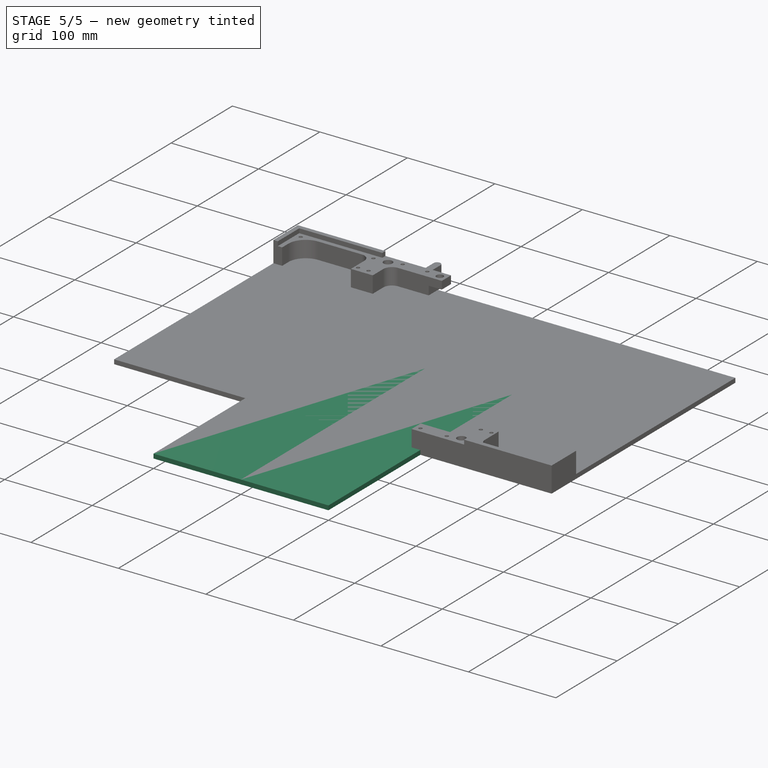
[diagram: stage 5 of 5 — iso view after this stage's code; geometry added in this stage tinted green]
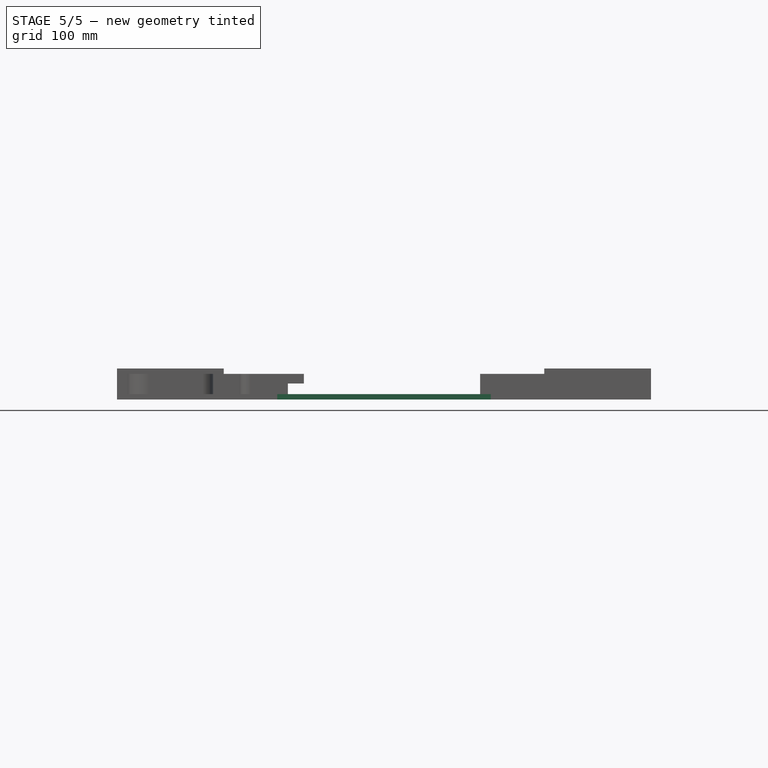
[diagram: stage 5 of 5 — front view after this stage's code; geometry added in this stage tinted green]
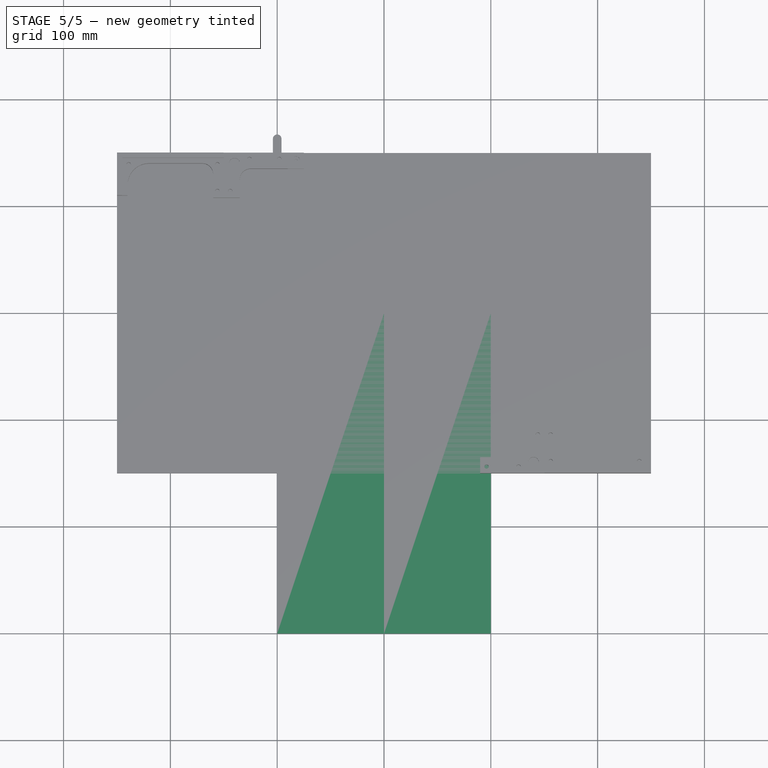
[diagram: stage 5 of 5 — top view after this stage's code; geometry added in this stage tinted green]
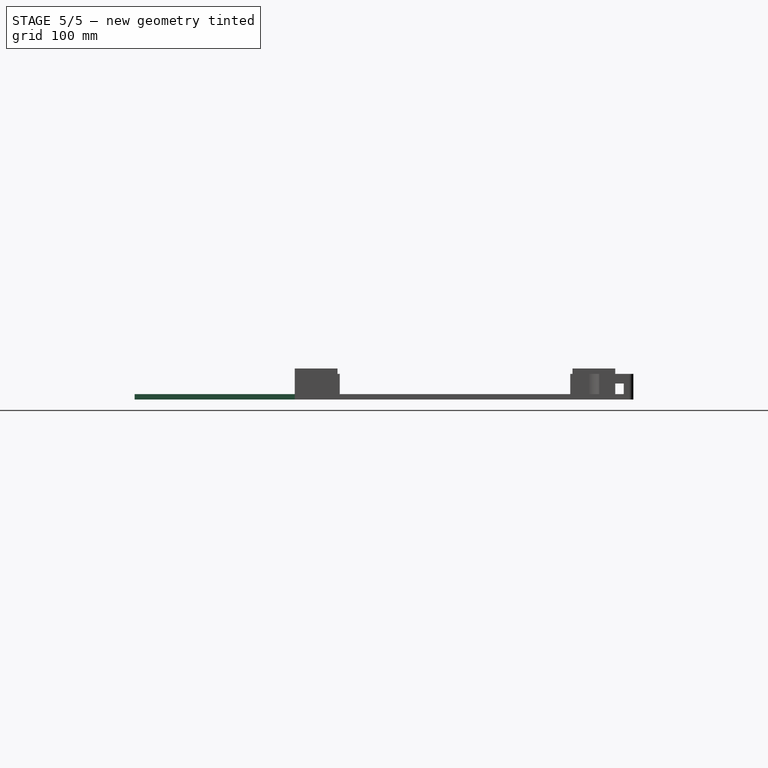
[diagram: stage 5 of 5 — right view after this stage's code; geometry added in this stage tinted green]
FEATURE [Sketcher::SketchObject] Sketch001
  ArcFitTolerance = 1e-06
  AttachmentSupport = -> [XY_Plane001]
  FullyConstrained = true
  MakeInternals = false
  MapMode = 5
  sketch-geometry (5):
    g0: LineSegment StartX=-150 StartY=-150 StartZ=0 EndX=150 EndY=-150 EndZ=0
    g1: LineSegment StartX=150 StartY=-150 StartZ=0 EndX=150 EndY=150 EndZ=0
    g2: LineSegment StartX=150 StartY=150 StartZ=0 EndX=-150 EndY=150 EndZ=0
    g3: LineSegment StartX=-150 StartY=150 StartZ=0 EndX=-150 EndY=-150 EndZ=0
    g4: GeomPoint [constr] X=0 Y=0 Z=0
  constraints (12):
    c: Coincident(g0,g1)
    c: Coincident(g1,g2)
    c: Coincident(g2,g3)
    c: Coincident(g3,g0)
    c: Horizontal(g0)
    c: Horizontal(g2)
    c: Vertical(g1)
    c: Vertical(g3)
    c: Symmetric(g2,g0,g4)
    c: Distance(g1,g3) = 300
    c: Distance(g0,g2) = 300
    c: Coincident(g4,g-1)
FEATURE [PartDesign::Pad] Pad001
  Direction = (0,0,1)
  Length = 5
  Length2 = 10
  Profile = -> Sketch001
  ReferenceAxis = -> Sketch001 [N_Axis]
  Refine = true
  Suppressed = false
  Type = 0
FEATURE [App::LinkGroup] LinkGroup002  label="TopBoard"
  ElementList = -> [Body001,Body002,Body003,ChessBoard]
  LinkMode = 0
  Placement = pos=(0,0,-1) rot=(0,0,1;0rad)
FEATURE [Sketcher::SketchObject] Sketch005
  ArcFitTolerance = 1e-06
  AttachmentSupport = -> [Pad]
  ExternalGeometry = -> [Sketch]
  FullyConstrained = false
  MakeInternals = false
  MapMode = 5
  Placement = pos=(0,0,0) rot=(1,0,0;3.14159rad)
  sketch-geometry (4):
    g0: LineSegment StartX=-92 StartY=-50 StartZ=0 EndX=-92 EndY=-193.39 EndZ=0
    g1: LineSegment StartX=-92 StartY=-193.39 StartZ=0 EndX=92 EndY=-193.39 EndZ=0
    g2: LineSegment StartX=92 StartY=-193.39 StartZ=0 EndX=92 EndY=-50 EndZ=0
    g3: LineSegment StartX=92 StartY=-50 StartZ=0 EndX=-92 EndY=-50 EndZ=0
  constraints (11):
    c: Coincident(g0,g1)
    c: Coincident(g1,g2)
    c: Coincident(g2,g3)
    c: Coincident(g3,g0)
    c: Vertical(g0)
    c: Vertical(g2)
    c: Horizontal(g1)
    c: Horizontal(g3)
    c: Distance(g-2,g2) = 92
    c: Distance(g-2,g0) = 92
    c: Distance(g-3,g3) = 100
FEATURE [PartDesign::Pocket] Pocket
  BaseFeature = -> Pad
  Direction = (0,0,1)
  Length = 5
  Length2 = 5
  Profile = -> Sketch005
  ReferenceAxis = -> Sketch005 [N_Axis]
  Refine = true
  Suppressed = false
  Type = 0
FEATURE [Sketcher::SketchObject] Sketch018
  ArcFitTolerance = 1e-06
  AttachmentSupport = -> [Pad007]
  FullyConstrained = true
  MakeInternals = false
  MapMode = 5
  Placement = pos=(154,0,0) rot=(0.57735,0.57735,0.57735;2.0944rad)
  sketch-geometry (4):
    g0: LineSegment StartX=0 StartY=15 StartZ=0 EndX=-8 EndY=15 EndZ=0
    g1: LineSegment StartX=-8 StartY=15 StartZ=0 EndX=-8 EndY=5 EndZ=0
    g2: LineSegment StartX=-8 StartY=5 StartZ=0 EndX=0 EndY=5 EndZ=0
    g3: LineSegment StartX=0 StartY=5 StartZ=0 EndX=0 EndY=15 EndZ=0
  constraints (12):
    c: Coincident(g0,g1)
    c: Coincident(g1,g2)
    c: Coincident(g2,g3)
    c: Coincident(g3,g0)
    c: Horizontal(g0)
    c: Horizontal(g2)
    c: Vertical(g1)
    c: Vertical(g3)
    c: Distance(g1,g3) = 8
    c: Distance(g0,g2) = 10
    c: PointOnObject(g0,g-2)
    c: Distance(g-1,g2) = 5
FEATURE [PartDesign::Pocket] Pocket009
  BaseFeature = -> Pad007
  Direction = (-1,0,0)
  Length = 8
  Length2 = 5
  Profile = -> Sketch018
  ReferenceAxis = -> Sketch018 [N_Axis]
  Refine = true
  Suppressed = false
  Type = 0
FEATURE [PartDesign::Body] Body005  label="AnchorTR"
  AllowCompound = false
  Group = -> [Sketch009,Pad005,Sketch010,Pocket004,Sketch011,Pocket005,Sketch012,Pocket006,Sketch013,Pad006,Sketch014,Hole,Hole001,Sketch016,Pocket008,Sketch017,Pad007,Sketch018,Pocket009]
  Origin = -> Origin005
  Placement = pos=(250,150,0) rot=(0,0,1;3.14159rad)
  Tip = -> Pocket009
FEATURE [Part::Mirroring] Part__Mirroring  label="AnchorTL"
  Base = (0,0,0)
  Normal = (1,0,0)
  Source = -> Body005
FEATURE [App::LinkGroup] LinkGroup001  label="Anchors"
  ElementList = -> [Body004,Part__Mirroring001,Body005,Part__Mirroring]
  LinkMode = 0
  Placement = pos=(0,4.76837e-08,9.53674e-07) rot=(0,0,1;0rad)
FEATURE [App::LinkGroup] LinkGroup  label="WoodenChessBoard"
  ElementList = -> [Body,LinkGroup001,LinkGroup002,Link]
  LinkMode = 0
FEATURE [App::Link] Link002  label="LatchesLockRight"
  LinkPlacement = pos=(-100,171,7.5) rot=(0,1,0;1.5708rad)
  LinkedObject = -> <external SnapLock.FCStd>#LinkGroup001
  Placement = pos=(-100,171,7.5) rot=(0,1,0;1.5708rad)

RESOLVED EXTERNAL PARTS (link-assembly join: the EXTERNAL_REF files above that resolve inside this repo's crawl, each included once):
---- part NavigationBoard.FCStd = doc fcstd_194939b25d6f (82924 chars; too large to inline — full recipe in that document) ----
---- part SnapLock.FCStd = doc fcstd_1e91e676e08e ----
FCSTD DOCUMENT  (FreeCAD 1.0R39319 (Git))
Label: SnapLock
License: All rights reserved
LicenseURL: https://en.wikipedia.org/wiki/All_rights_reserved
objects: Sketcher::SketchObject×8, PartDesign::Pocket×6, PartDesign::Pad×2, PartDesign::Body×2, App::LinkGroup×2, Part::Mirroring×2, PartDesign::Mirrored×1
note: 46 computed .brp shape members not serialized (recipe doc carries the construction recipe); baked Part::Feature solids carry a one-line shape summary decoded from their .brp

FEATURE [Sketcher::SketchObject] Sketch007
  ArcFitTolerance = 1e-06
  AttachmentSupport = -> [YZ_Plane002]
  FullyConstrained = true
  MakeInternals = false
  MapMode = 5
  Placement = pos=(0,0,0) rot=(0.57735,0.57735,0.57735;2.0944rad)
  sketch-geometry (9):
    g0: ArcOfCircle CenterX=0 CenterY=0 CenterZ=0 NormalX=0 NormalY=0 NormalZ=1 AngleXU=0 Radius=4 StartAngle=0 EndAngle=3.14159
    g1: ArcOfCircle CenterX=-8 CenterY=0 CenterZ=0 NormalX=0 NormalY=0 NormalZ=1 AngleXU=0 Radius=4 StartAngle=4.71239 EndAngle=6.28319
    g2: ArcOfCircle CenterX=8 CenterY=0 CenterZ=0 NormalX=0 NormalY=0 NormalZ=1 AngleXU=0 Radius=4 StartAngle=3.14159 EndAngle=4.71239
    g3: LineSegment StartX=8 StartY=-4 StartZ=0 EndX=15 EndY=-4 EndZ=0
    g4: LineSegment StartX=15 StartY=-4 StartZ=0 EndX=15 EndY=-10 EndZ=0
    g5: LineSegment StartX=15 StartY=-10 StartZ=0 EndX=-21 EndY=-10 EndZ=0
    g6: LineSegment StartX=-21 StartY=-10 StartZ=0 EndX=-21 EndY=-4 EndZ=0
    g7: LineSegment StartX=-21 StartY=-4 StartZ=0 EndX=-8 EndY=-4 EndZ=0
    g8: Circle CenterX=0 CenterY=0 CenterZ=0 NormalX=0 NormalY=0 NormalZ=1 AngleXU=0 Radius=1.5
  constraints (27):
    c: Radius(g0) = 4
    c: Coincident(g0,g-1)
    c: PointOnObject(g0,g-1)
    c: PointOnObject(g0,g-1)
    c: PointOnObject(g1,g-1)
    c: Coincident(g1,g0)
    c: Radius(g1) = 4
    c: PointOnObject(g2,g-1)
    c: Coincident(g2,g0)
    c: Radius(g2) = 4
    c: Tangent(g2,g3) = -1.5708
    c: Coincident(g3,g4)
    c: Vertical(g4)
    c: Coincident(g4,g5)
    c: Horizontal(g5)
    c: Coincident(g5,g6)
    c: Vertical(g6)
    c: Coincident(g6,g7)
    c: Coincident(g7,g1)
    c: Horizontal(g7)
    c: Diameter(g8) = 3
    c: Coincident(g8,g0)
    c: Vertical(g1,g1)
    c: Vertical(g2,g2)
    c: Distance(g-1,g5) = 10
    c: Distance(g-2,g6) = 21
    c: Distance(g-2,g4) = 15
FEATURE [PartDesign::Pad] Pad002
  Direction = (1,0,0)
  Length = 15
  Length2 = 10
  Midplane = true
  Placement = pos=(0,0,0) rot=(1,1,1;2.0944rad)
  Profile = -> Sketch007
  ReferenceAxis = -> Sketch007 [N_Axis]
  Refine = true
  Suppressed = false
  Type = 0
FEATURE [PartDesign::Body] Body002  label="Bottom001"
  AllowCompound = false
  Group = -> [Sketch007,Pad002,Sketch008,Pocket005,Sketch009,Pocket006,Sketch010,Pocket007]
  Origin = -> Origin002
  Tip = -> Pocket007
FEATURE [Sketcher::SketchObject] Sketch011
  ArcFitTolerance = 1e-06
  AttachmentSupport = -> [YZ_Plane003]
  FullyConstrained = true
  MakeInternals = false
  MapMode = 5
  Placement = pos=(0,0,0) rot=(0.57735,0.57735,0.57735;2.0944rad)
  sketch-geometry (10):
    g0: ArcOfCircle CenterX=0 CenterY=0 CenterZ=0 NormalX=0 NormalY=0 NormalZ=1 AngleXU=0 Radius=4 StartAngle=3.14159 EndAngle=6.28319
    g1: ArcOfCircle CenterX=8 CenterY=0 CenterZ=0 NormalX=0 NormalY=0 NormalZ=1 AngleXU=0 Radius=4 StartAngle=1.5708 EndAngle=3.14159
    g2: ArcOfCircle CenterX=-8 CenterY=0 CenterZ=0 NormalX=0 NormalY=0 NormalZ=1 AngleXU=0 Radius=4 StartAngle=0 EndAngle=1.5708
    g3: LineSegment StartX=8 StartY=4 StartZ=0 EndX=15 EndY=4 EndZ=0
    g4: LineSegment StartX=15 StartY=4 StartZ=0 EndX=15 EndY=10 EndZ=0
    g5: LineSegment StartX=15 StartY=10 StartZ=0 EndX=-21 EndY=10 EndZ=0
    g6: LineSegment StartX=-21 StartY=10 StartZ=0 EndX=-21 EndY=4 EndZ=0
    g7: LineSegment StartX=-13 StartY=4 StartZ=0 EndX=-8 EndY=4 EndZ=0
    g8: Circle CenterX=0 CenterY=0 CenterZ=0 NormalX=0 NormalY=0 NormalZ=1 AngleXU=0 Radius=1.5
    g9: ArcOfCircle CenterX=-17 CenterY=4 CenterZ=0 NormalX=0 NormalY=0 NormalZ=1 AngleXU=0 Radius=4 StartAngle=3.14159 EndAngle=6.28319
  constraints (31):
    c: Radius(g0) = 4
    c: Coincident(g0,g-1)
    c: PointOnObject(g0,g-1)
    c: PointOnObject(g0,g-1)
    c: Angle(g1) = 1.5708
    c: PointOnObject(g1,g-1)
    c: Coincident(g1,g0)
    c: Radius(g1) = 4
    c: Angle(g2) = 1.5708
    c: PointOnObject(g2,g-1)
    c: Coincident(g2,g0)
    c: Radius(g2) = 4
    c: Tangent(g1,g3) = 1.5708
    c: Coincident(g3,g4)
    c: Vertical(g4)
    c: Coincident(g4,g5)
    c: Horizontal(g5)
    c: Coincident(g5,g6)
    c: Vertical(g6)
    c: Coincident(g7,g2)
    c: Horizontal(g7)
    c: Horizontal(g7,g6)
    c: DistanceX(g7,g7) = 5
    c: DistanceY(g4,g4) = 6
    c: Diameter(g8) = 3
    c: Coincident(g8,g0)
    c: Distance(g-2,g4) = 15
    c: Coincident(g9,g7)
    c: Coincident(g9,g6)
    c: Radius(g9) = 4
    c: Symmetric(g7,g6,g9)
FEATURE [PartDesign::Pad] Pad003
  Direction = (1,0,0)
  Length = 15
  Length2 = 10
  Midplane = true
  Placement = pos=(0,0,0) rot=(1,1,1;2.0944rad)
  Profile = -> Sketch011
  ReferenceAxis = -> Sketch011 [N_Axis]
  Refine = true
  Suppressed = false
  Type = 0
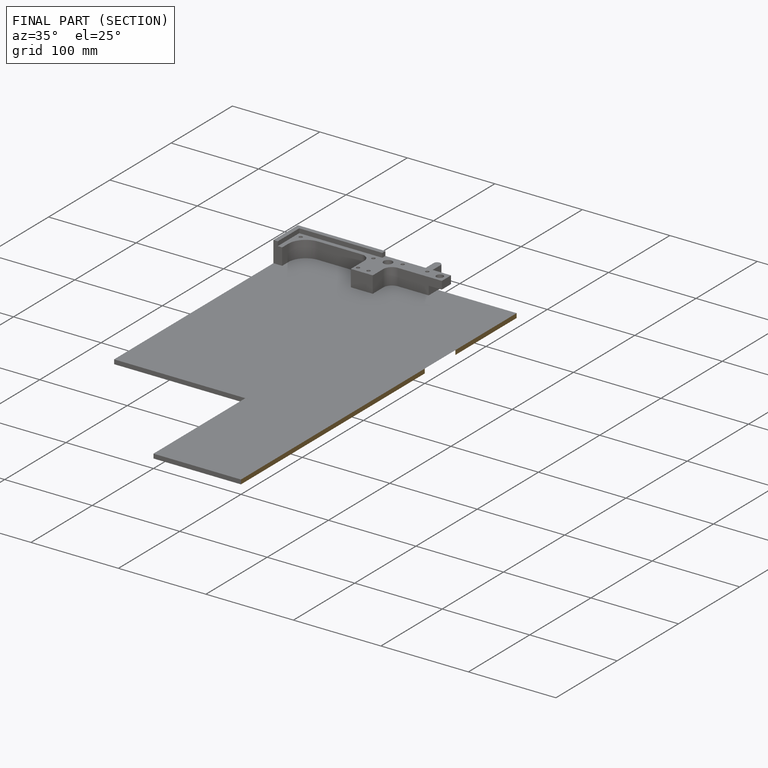
[diagram: finished part — half-section view (interior)]
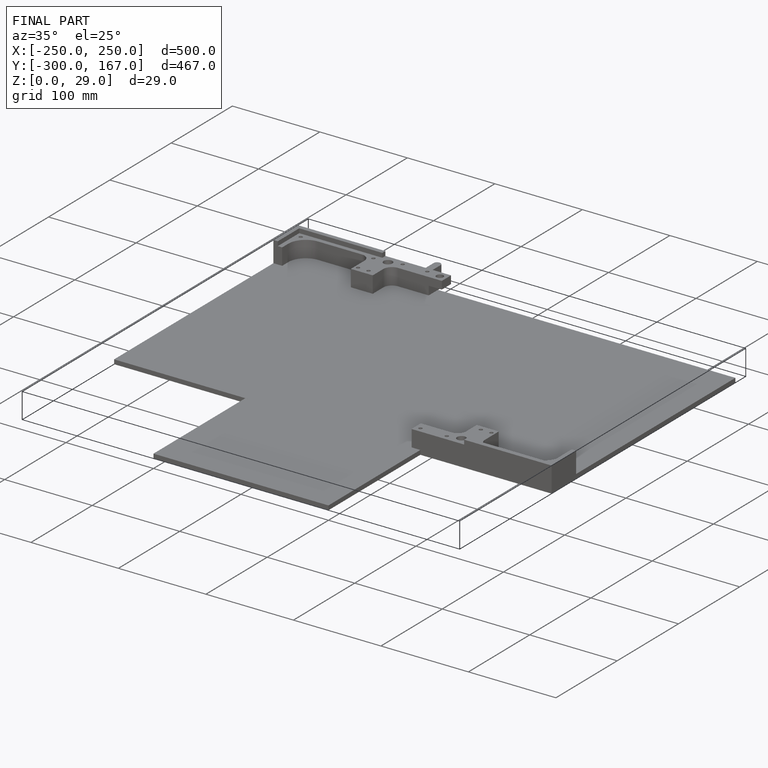
[diagram: finished part — iso view with bounding-box wireframe]
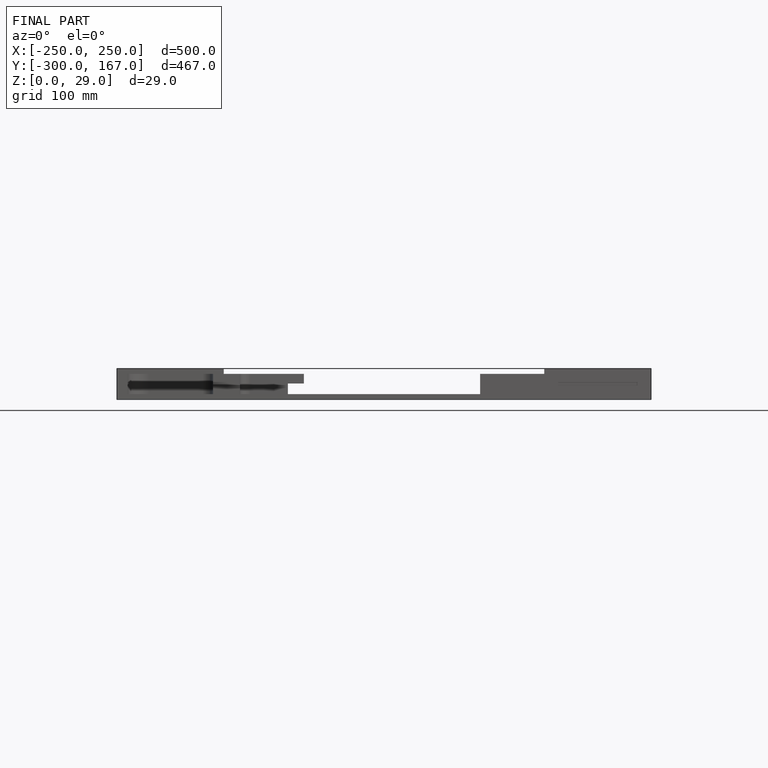
[diagram: finished part — front view with bounding-box wireframe]
